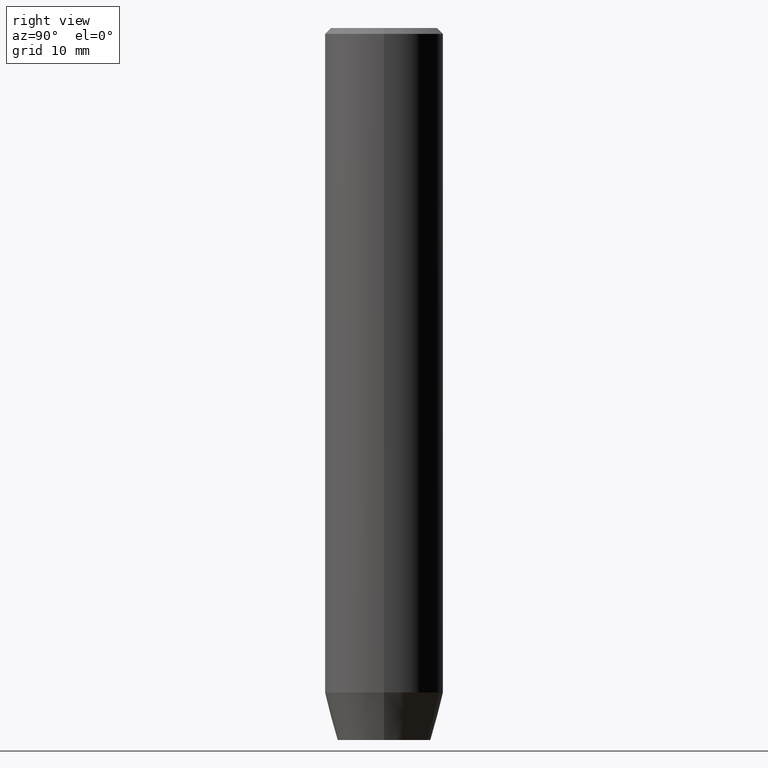
[diagram: clean part render]
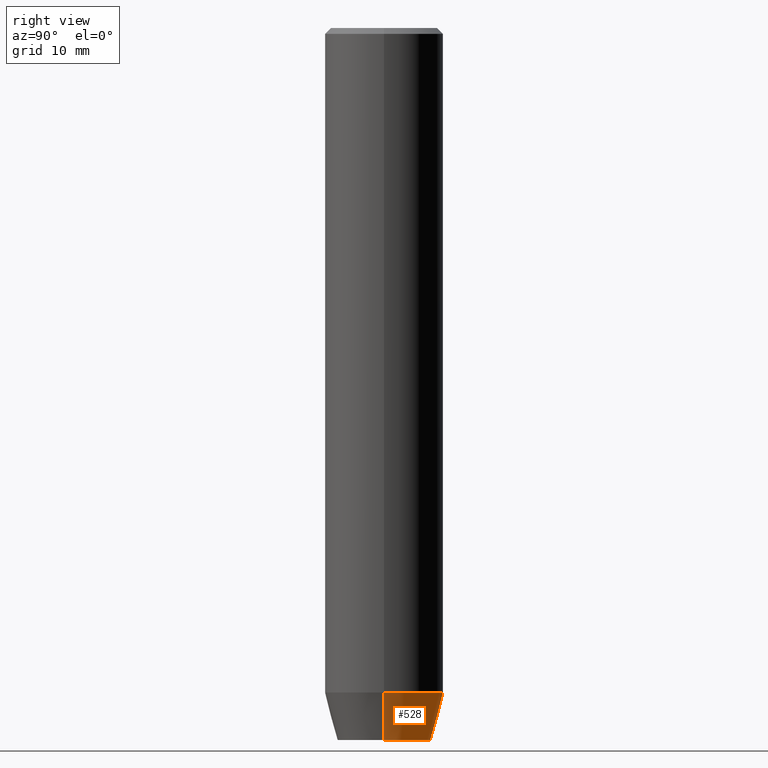
[diagram: same view with one face highlighted and labeled with its STEP entity id]
A machine part, right view. The second image highlights one B-rep face of the part: STEP entity #528.
In plain terms, the highlighted conical surface has half-angle 15 deg.
Its self-contained STEP definition (entity closure, byte-faithful):
#22 = DIRECTION ( 'NONE',  ( -0.000000000000000000, -0.000000000000000000, 1.000000000000000000 ) ) ;
#58 = CIRCLE ( 'NONE', #442, 5.000000000000000000 ) ;
#73 = EDGE_CURVE ( 'NONE', #510, #545, #58, .T. ) ;
#108 = CARTESIAN_POINT ( 'NONE',  ( 5.000000000000000000, 0.000000000000000000, -55.99999999999999289 ) ) ;
#118 = DIRECTION ( 'NONE',  ( 0.2588190451025214611, 0.000000000000000000, 0.9659258262890680902 ) ) ;
#124 = EDGE_CURVE ( 'NONE', #333, #510, #513, .T. ) ;
#129 = DIRECTION ( 'NONE',  ( -0.2588190451025214611, 3.169619151431773569E-17, 0.9659258262890680902 ) ) ;
#139 = DIRECTION ( 'NONE',  ( 1.000000000000000000, 0.000000000000000000, 0.000000000000000000 ) ) ;
#140 = VERTEX_POINT ( 'NONE', #166 ) ;
#147 = VECTOR ( 'NONE', #129, 1000.000000000000000 ) ;
#166 = CARTESIAN_POINT ( 'NONE',  ( -3.928203230275505220, 5.466947754046979141E-16, -60.00000000000000000 ) ) ;
#185 = CIRCLE ( 'NONE', #262, 3.928203230275505220 ) ;
#197 = CARTESIAN_POINT ( 'NONE',  ( 0.000000000000000000, 0.000000000000000000, -60.00000000000000000 ) ) ;
#204 = ORIENTED_EDGE ( 'NONE', *, *, #73, .F. ) ;
#222 = CONICAL_SURFACE ( 'NONE', #425, 5.000000000000000000, 0.2617993877991501850 ) ;
#225 = CARTESIAN_POINT ( 'NONE',  ( 0.000000000000000000, 0.000000000000000000, -55.99999999999999289 ) ) ;
#249 = FACE_OUTER_BOUND ( 'NONE', #407, .T. ) ;
#255 = CARTESIAN_POINT ( 'NONE',  ( -5.000000000000000000, 6.123233995736766282E-16, -55.99999999999999289 ) ) ;
#262 = AXIS2_PLACEMENT_3D ( 'NONE', #197, #22, #562 ) ;
#287 = ORIENTED_EDGE ( 'NONE', *, *, #576, .T. ) ;
#305 = CARTESIAN_POINT ( 'NONE',  ( -5.000000000000000000, 6.123233995736766282E-16, -55.99999999999999289 ) ) ;
#326 = CARTESIAN_POINT ( 'NONE',  ( 5.000000000000000000, 0.000000000000000000, -55.99999999999999289 ) ) ;
#333 = VERTEX_POINT ( 'NONE', #538 ) ;
#336 = DIRECTION ( 'NONE',  ( 1.000000000000000000, 0.000000000000000000, 0.000000000000000000 ) ) ;
#384 = LINE ( 'NONE', #305, #147 ) ;
#407 = EDGE_LOOP ( 'NONE', ( #452, #287, #204, #479 ) ) ;
#425 = AXIS2_PLACEMENT_3D ( 'NONE', #512, #466, #336 ) ;
#442 = AXIS2_PLACEMENT_3D ( 'NONE', #225, #584, #139 ) ;
#452 = ORIENTED_EDGE ( 'NONE', *, *, #483, .T. ) ;
#466 = DIRECTION ( 'NONE',  ( -0.000000000000000000, -0.000000000000000000, 1.000000000000000000 ) ) ;
#479 = ORIENTED_EDGE ( 'NONE', *, *, #124, .F. ) ;
#483 = EDGE_CURVE ( 'NONE', #333, #140, #185, .T. ) ;
#505 = VECTOR ( 'NONE', #118, 1000.000000000000000 ) ;
#510 = VERTEX_POINT ( 'NONE', #326 ) ;
#512 = CARTESIAN_POINT ( 'NONE',  ( 0.000000000000000000, 0.000000000000000000, -55.99999999999999289 ) ) ;
#513 = LINE ( 'NONE', #108, #505 ) ;
#528 = ADVANCED_FACE ( 'NONE', ( #249 ), #222, .T. ) ;
#538 = CARTESIAN_POINT ( 'NONE',  ( 3.928203230275505220, 0.000000000000000000, -60.00000000000000000 ) ) ;
#545 = VERTEX_POINT ( 'NONE', #255 ) ;
#562 = DIRECTION ( 'NONE',  ( 1.000000000000000000, 0.000000000000000000, 0.000000000000000000 ) ) ;
#576 = EDGE_CURVE ( 'NONE', #140, #545, #384, .T. ) ;
#584 = DIRECTION ( 'NONE',  ( -0.000000000000000000, -0.000000000000000000, 1.000000000000000000 ) ) ;